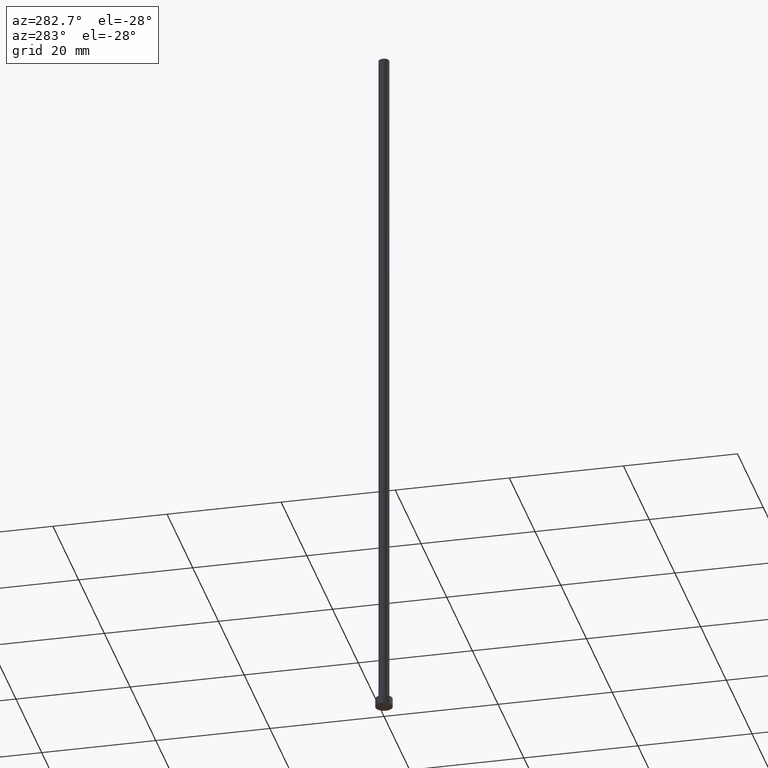
[diagram: clean part render]
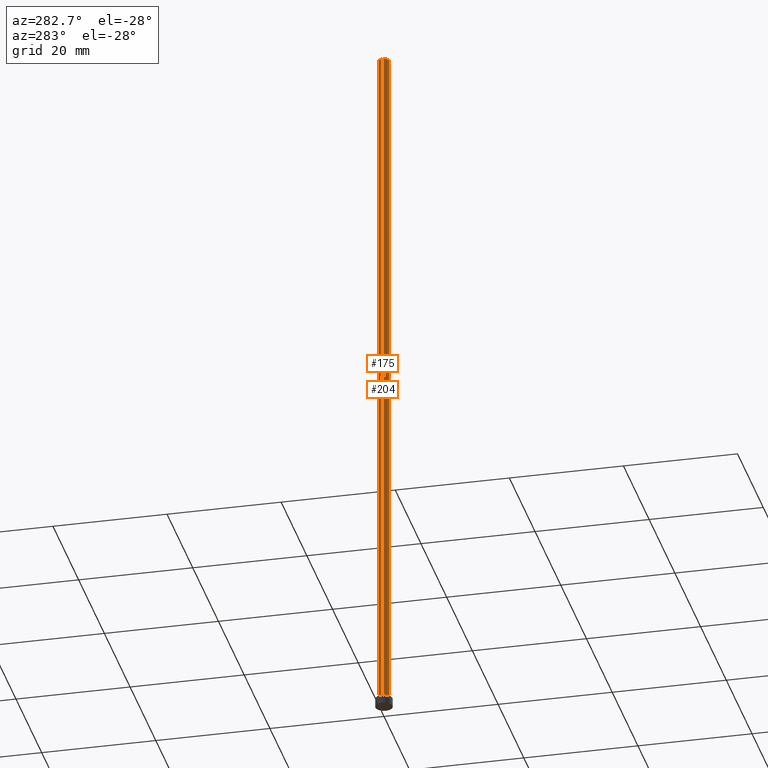
[diagram: same view with one multi-face feature highlighted, each face labeled with its STEP entity id]
A machine part, auxiliary view. The highlighted faces form ONE feature: a constant-radius fillet chain: 2 tangent blend faces with common blend radius 0.95 mm. The faces share edges in the B-rep.
Their STEP definitions:
[1] entity #175 (Cylinder):
#7 = EDGE_LOOP ( 'NONE', ( #162, #171, #43, #69 ) ) ;
#20 = DIRECTION ( 'NONE',  ( -1.000000000000000000, 0.000000000000000000, 0.000000000000000000 ) ) ;
#23 = CYLINDRICAL_SURFACE ( 'NONE', #148, 0.9499999999999999556 ) ;
#36 = LINE ( 'NONE', #57, #99 ) ;
#43 = ORIENTED_EDGE ( 'NONE', *, *, #66, .T. ) ;
#56 = DIRECTION ( 'NONE',  ( 1.000000000000000000, 0.000000000000000000, 0.000000000000000000 ) ) ;
#57 = CARTESIAN_POINT ( 'NONE',  ( -0.9499999999999999556, 0.000000000000000000, 125.0000000000000000 ) ) ;
#59 = LINE ( 'NONE', #238, #230 ) ;
#60 = FACE_OUTER_BOUND ( 'NONE', #7, .T. ) ;
#62 = DIRECTION ( 'NONE',  ( -0.000000000000000000, -0.000000000000000000, -1.000000000000000000 ) ) ;
#66 = EDGE_CURVE ( 'NONE', #89, #176, #36, .T. ) ;
#69 = ORIENTED_EDGE ( 'NONE', *, *, #157, .T. ) ;
#77 = VERTEX_POINT ( 'NONE', #108 ) ;
#89 = VERTEX_POINT ( 'NONE', #187 ) ;
#93 = DIRECTION ( 'NONE',  ( 1.000000000000000000, 0.000000000000000000, 0.000000000000000000 ) ) ;
#97 = CARTESIAN_POINT ( 'NONE',  ( -0.9499999999999999556, 0.000000000000000000, 1.500000000000000000 ) ) ;
#99 = VECTOR ( 'NONE', #109, 1000.000000000000000 ) ;
#108 = CARTESIAN_POINT ( 'NONE',  ( 0.9499999999999999556, 1.163414459189985682E-16, 125.0000000000000000 ) ) ;
#109 = DIRECTION ( 'NONE',  ( -0.000000000000000000, -0.000000000000000000, -1.000000000000000000 ) ) ;
#112 = VERTEX_POINT ( 'NONE', #206 ) ;
#127 = CARTESIAN_POINT ( 'NONE',  ( 0.000000000000000000, 0.000000000000000000, 125.0000000000000000 ) ) ;
#135 = EDGE_CURVE ( 'NONE', #89, #77, #198, .T. ) ;
#148 = AXIS2_PLACEMENT_3D ( 'NONE', #236, #62, #20 ) ;
#157 = EDGE_CURVE ( 'NONE', #176, #112, #239, .T. ) ;
#162 = ORIENTED_EDGE ( 'NONE', *, *, #199, .F. ) ;
#171 = ORIENTED_EDGE ( 'NONE', *, *, #135, .F. ) ;
#175 = ADVANCED_FACE ( 'NONE', ( #60 ), #23, .T. ) ;
#176 = VERTEX_POINT ( 'NONE', #97 ) ;
#180 = DIRECTION ( 'NONE',  ( -0.000000000000000000, -0.000000000000000000, -1.000000000000000000 ) ) ;
#182 = AXIS2_PLACEMENT_3D ( 'NONE', #192, #194, #93 ) ;
#187 = CARTESIAN_POINT ( 'NONE',  ( -0.9499999999999999556, 0.000000000000000000, 125.0000000000000000 ) ) ;
#192 = CARTESIAN_POINT ( 'NONE',  ( 0.000000000000000000, 0.000000000000000000, 1.500000000000000000 ) ) ;
#194 = DIRECTION ( 'NONE',  ( 0.000000000000000000, 0.000000000000000000, 1.000000000000000000 ) ) ;
#198 = CIRCLE ( 'NONE', #216, 0.9499999999999999556 ) ;
#199 = EDGE_CURVE ( 'NONE', #77, #112, #59, .T. ) ;
#206 = CARTESIAN_POINT ( 'NONE',  ( 0.9499999999999999556, 1.163414459189985682E-16, 1.500000000000000000 ) ) ;
#216 = AXIS2_PLACEMENT_3D ( 'NONE', #127, #229, #56 ) ;
#229 = DIRECTION ( 'NONE',  ( 0.000000000000000000, 0.000000000000000000, 1.000000000000000000 ) ) ;
#230 = VECTOR ( 'NONE', #180, 1000.000000000000000 ) ;
#236 = CARTESIAN_POINT ( 'NONE',  ( 0.000000000000000000, 0.000000000000000000, 125.0000000000000000 ) ) ;
#238 = CARTESIAN_POINT ( 'NONE',  ( 0.9499999999999999556, 1.163414459189985682E-16, 125.0000000000000000 ) ) ;
#239 = CIRCLE ( 'NONE', #182, 0.9499999999999999556 ) ;
[2] entity #204 (Cylinder):
#6 = DIRECTION ( 'NONE',  ( 0.000000000000000000, 0.000000000000000000, 1.000000000000000000 ) ) ;
#15 = ORIENTED_EDGE ( 'NONE', *, *, #219, .T. ) ;
#36 = LINE ( 'NONE', #57, #99 ) ;
#47 = DIRECTION ( 'NONE',  ( 0.000000000000000000, 0.000000000000000000, 1.000000000000000000 ) ) ;
#57 = CARTESIAN_POINT ( 'NONE',  ( -0.9499999999999999556, 0.000000000000000000, 125.0000000000000000 ) ) ;
#59 = LINE ( 'NONE', #238, #230 ) ;
#61 = AXIS2_PLACEMENT_3D ( 'NONE', #81, #6, #221 ) ;
#65 = DIRECTION ( 'NONE',  ( -1.000000000000000000, 0.000000000000000000, 0.000000000000000000 ) ) ;
#66 = EDGE_CURVE ( 'NONE', #89, #176, #36, .T. ) ;
#77 = VERTEX_POINT ( 'NONE', #108 ) ;
#81 = CARTESIAN_POINT ( 'NONE',  ( 0.000000000000000000, 0.000000000000000000, 1.500000000000000000 ) ) ;
#84 = DIRECTION ( 'NONE',  ( 1.000000000000000000, 0.000000000000000000, 0.000000000000000000 ) ) ;
#89 = VERTEX_POINT ( 'NONE', #187 ) ;
#97 = CARTESIAN_POINT ( 'NONE',  ( -0.9499999999999999556, 0.000000000000000000, 1.500000000000000000 ) ) ;
#99 = VECTOR ( 'NONE', #109, 1000.000000000000000 ) ;
#101 = CIRCLE ( 'NONE', #183, 0.9499999999999999556 ) ;
#103 = EDGE_LOOP ( 'NONE', ( #232, #185, #15, #147 ) ) ;
#108 = CARTESIAN_POINT ( 'NONE',  ( 0.9499999999999999556, 1.163414459189985682E-16, 125.0000000000000000 ) ) ;
#109 = DIRECTION ( 'NONE',  ( -0.000000000000000000, -0.000000000000000000, -1.000000000000000000 ) ) ;
#112 = VERTEX_POINT ( 'NONE', #206 ) ;
#131 = CYLINDRICAL_SURFACE ( 'NONE', #227, 0.9499999999999999556 ) ;
#132 = CIRCLE ( 'NONE', #61, 0.9499999999999999556 ) ;
#147 = ORIENTED_EDGE ( 'NONE', *, *, #66, .F. ) ;
#151 = FACE_OUTER_BOUND ( 'NONE', #103, .T. ) ;
#176 = VERTEX_POINT ( 'NONE', #97 ) ;
#180 = DIRECTION ( 'NONE',  ( -0.000000000000000000, -0.000000000000000000, -1.000000000000000000 ) ) ;
#183 = AXIS2_PLACEMENT_3D ( 'NONE', #241, #47, #84 ) ;
#185 = ORIENTED_EDGE ( 'NONE', *, *, #199, .T. ) ;
#187 = CARTESIAN_POINT ( 'NONE',  ( -0.9499999999999999556, 0.000000000000000000, 125.0000000000000000 ) ) ;
#199 = EDGE_CURVE ( 'NONE', #77, #112, #59, .T. ) ;
#201 = DIRECTION ( 'NONE',  ( -0.000000000000000000, -0.000000000000000000, -1.000000000000000000 ) ) ;
#204 = ADVANCED_FACE ( 'NONE', ( #151 ), #131, .T. ) ;
#206 = CARTESIAN_POINT ( 'NONE',  ( 0.9499999999999999556, 1.163414459189985682E-16, 1.500000000000000000 ) ) ;
#219 = EDGE_CURVE ( 'NONE', #112, #176, #132, .T. ) ;
#221 = DIRECTION ( 'NONE',  ( 1.000000000000000000, 0.000000000000000000, 0.000000000000000000 ) ) ;
#227 = AXIS2_PLACEMENT_3D ( 'NONE', #243, #201, #65 ) ;
#230 = VECTOR ( 'NONE', #180, 1000.000000000000000 ) ;
#232 = ORIENTED_EDGE ( 'NONE', *, *, #244, .F. ) ;
#238 = CARTESIAN_POINT ( 'NONE',  ( 0.9499999999999999556, 1.163414459189985682E-16, 125.0000000000000000 ) ) ;
#241 = CARTESIAN_POINT ( 'NONE',  ( 0.000000000000000000, 0.000000000000000000, 125.0000000000000000 ) ) ;
#243 = CARTESIAN_POINT ( 'NONE',  ( 0.000000000000000000, 0.000000000000000000, 125.0000000000000000 ) ) ;
#244 = EDGE_CURVE ( 'NONE', #77, #89, #101, .T. ) ;